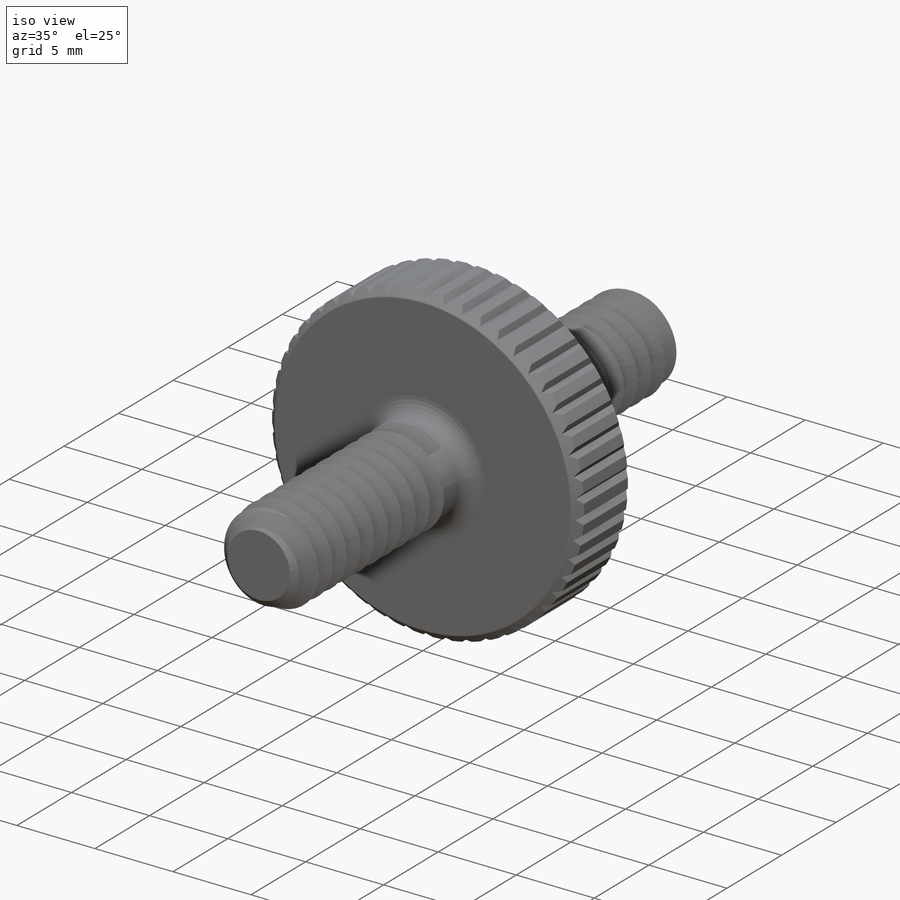
[diagram: iso view]
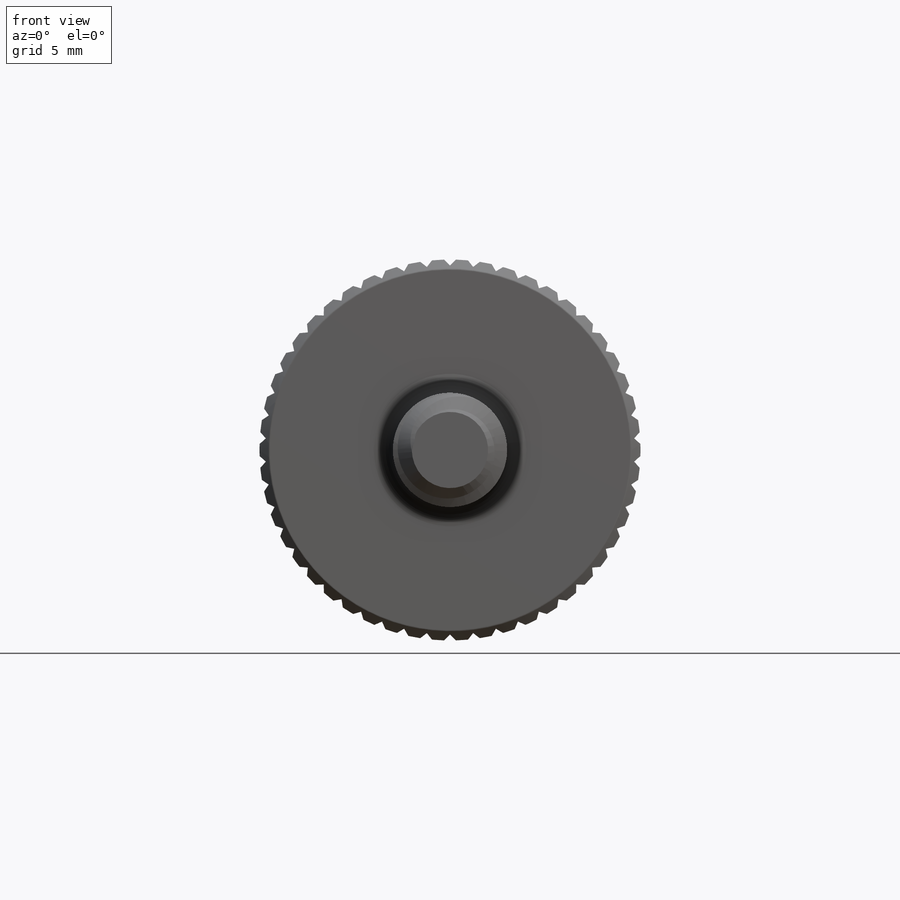
[diagram: front view]
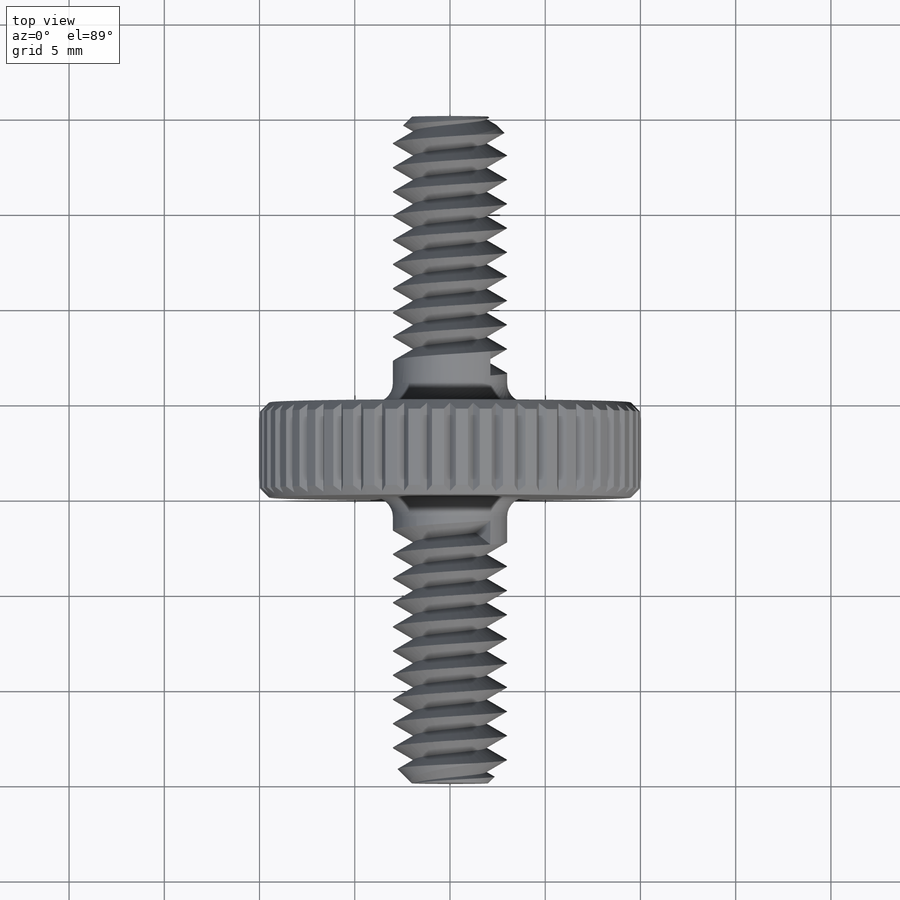
[diagram: top view]
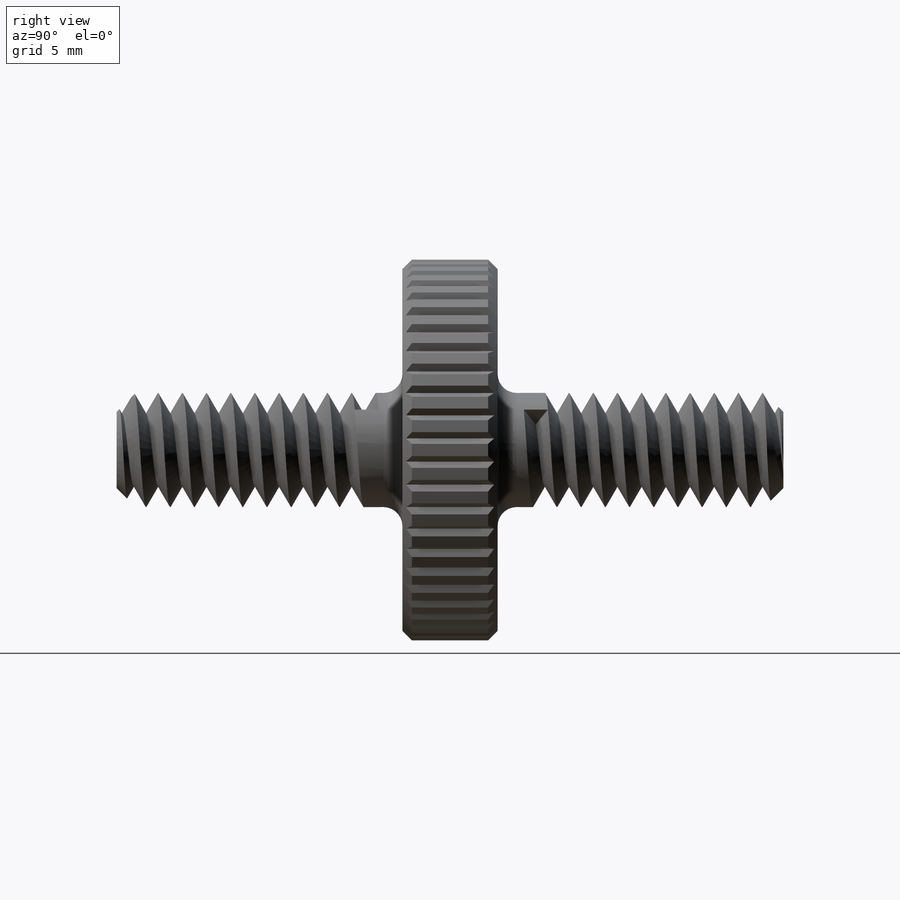
[diagram: right view]
SOLIDWORKS PART (.sldprt)
format: sldprt  version: not decoded by parser v0  size: 1,054,720 bytes
history: native  units: mm
features: sketch x9, plane x6, extrude x3, chamfer x2, fillet x2, sweep x2, material x1, helix x1, cut_extrude x1 (+8 scaffold rows collapsed)
feature tree (35):
  scaffold x8  (default folders/planes/origin — collapsed)
  material  "Материал <не указан>"
  plane  "Спереди"
  plane  "Сверху"
  plane  "Справа"
  sketch  "Эскиз1"  dims[D1=20.0mm]
  extrude  "Бобышка-Вытянуть1"  Depth=5mm
  sketch  "Эскиз2"  dims[D1=6.0mm]
  extrude  "Бобышка-Вытянуть2"  Depth=15mm
  sketch  "Эскиз3"  dims[D1=6.0mm]
  extrude  "Бобышка-Вытянуть3"  Depth=15mm
  chamfer  "Фаска1"  Distance=1mm Angle=45deg
  chamfer  "Фаска2"  Distance=0.5mm Angle=45deg
  fillet  "Скругление3"  Radius=1mm
  plane  "Плоскость1"  Offset=10mm
  sketch  "Эскиз5"
  helix  "Спираль1"  Pitch=23.1775mm
  sketch  "Эскиз7"  dims[c1.D1=~0.962583mm c2.D1=60.0deg c2.D2=~1.596555mm c3.D2=60.0deg c3.D3=1.26mm]
  sweep  "Вырез-По траектории1"
  plane  "Плоскость4"  Offset=2.5mm
  plane  "Плоскость5"  Offset=2.5mm
  sketch  "Эскиз12"  dims[Спираль3=0.0 D3=15.24mm D4=1.27mm D5=12000.0mm D7=135.0deg]
  sketch  "Эскиз13"  dims[c1.D1=~0.870461mm c2.D1=60.0deg c2.D2=~1.506672mm c3.D2=60.0deg c3.D3=1.26mm]
  sweep  "Вырез-По траектории3"
  sketch  "Эскиз9"  dims[c1.D1=~1.113725mm c2.D1=60.0deg c2.D2=~2.776785mm c3.D2=60.0deg c3.D3=1.58mm]
  sketch  "Эскиз10"  dims[c1.D1=~0.861783mm c2.D1=60.0deg c2.D2=~0.861783mm c3.D2=60.0deg c3.D3=2.0mm c3.D1=~1.732051mm c4.D1=120.0deg c5.D1=~2.297261mm c6.D1=90.0deg c6.D2=~1.316701mm c7.D2=30.0deg c8.D2=~0.870369mm c9.D2=45.0deg c9.D3=50.0]
  cut_extrude  "Вырез-Вытянуть1"  [1 undecoded]
  fillet  "Скругление1"  Radius=0.1mm
decode coverage: 16 of 20 modeling features carry decoded parameters
note: ~ marks probable driven/reference dimensions
note: 1 parameter value undecoded
note: suppression state not decoded; provenance and decode notes live in map.json
